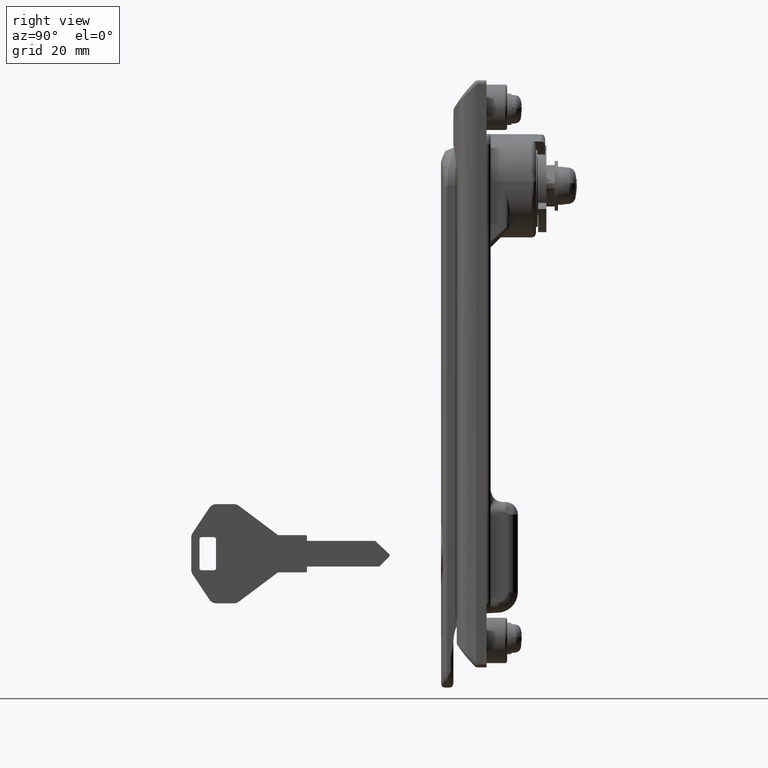
[diagram: clean part render]
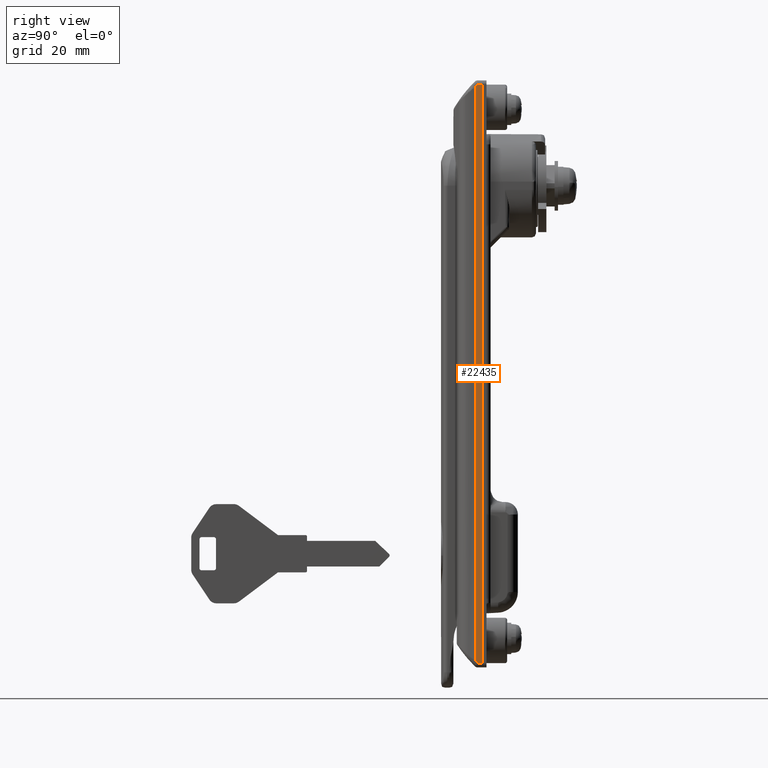
[diagram: same view with one face highlighted and labeled with its STEP entity id]
A machine part, right view. The second image highlights one B-rep face of the part: STEP entity #22435.
In plain terms, the highlighted face is a freeform B-spline surface patch.
Its self-contained STEP definition (entity closure, byte-faithful):
#19493=CARTESIAN_POINT('',(-18.997706373852200,-15.999999999963650,24.094471885114700));
#19494=VERTEX_POINT('',#19493);
#19659=CARTESIAN_POINT('',(-18.593803071811749,-15.999999999963650,24.499999999998899));
#19660=VERTEX_POINT('',#19659);
#19690=CARTESIAN_POINT('',(-18.593803071811760,-15.999999999963650,24.499999999998931));
#19691=CARTESIAN_POINT('',(-18.797626627486107,-15.999999999963647,24.299100347127485));
#19692=CARTESIAN_POINT('',(-18.997706373852189,-15.999999999963650,24.094471885114700));
#19700=(BOUNDED_CURVE()B_SPLINE_CURVE(2,(#19690,#19691,#19692),.UNSPECIFIED.,.F.,.U.)CURVE()GEOMETRIC_REPRESENTATION_ITEM()QUASI_UNIFORM_CURVE()RATIONAL_B_SPLINE_CURVE((1.0,0.999957388409327,1.0))REPRESENTATION_ITEM(''));
#19701=EDGE_CURVE('',#19660,#19494,#19700,.T.);
#20479=CARTESIAN_POINT('',(-18.997706373852200,-15.999999999963650,-115.094471885196000));
#20480=VERTEX_POINT('',#20479);
#20579=CARTESIAN_POINT('',(-18.593803071811749,-15.999999999963650,-115.500000000080210));
#20580=VERTEX_POINT('',#20579);
#20594=CARTESIAN_POINT('',(-18.997706373852239,-15.999999999963650,-115.094471885196000));
#20595=CARTESIAN_POINT('',(-18.797626627486213,-15.999999999963645,-115.299100347208750));
#20596=CARTESIAN_POINT('',(-18.593803071811820,-15.999999999963650,-115.500000000080310));
#20604=(BOUNDED_CURVE()B_SPLINE_CURVE(2,(#20594,#20595,#20596),.UNSPECIFIED.,.F.,.U.)CURVE()GEOMETRIC_REPRESENTATION_ITEM()QUASI_UNIFORM_CURVE()RATIONAL_B_SPLINE_CURVE((1.0,0.999957388409327,1.0))REPRESENTATION_ITEM(''));
#20605=EDGE_CURVE('',#20480,#20580,#20604,.T.);
#20845=CARTESIAN_POINT('',(-17.500000000000000,-15.999999999963650,-115.500000000080210));
#20846=VERTEX_POINT('',#20845);
#20847=CARTESIAN_POINT('',(-18.593803071811749,-15.999999999963650,-115.500000000080210));
#20848=CARTESIAN_POINT('',(-17.500000000000000,-15.999999999963650,-115.500000000080210));
#20849=QUASI_UNIFORM_CURVE('',1,(#20847,#20848),.UNSPECIFIED.,.F.,.U.);
#20850=EDGE_CURVE('',#20580,#20846,#20849,.T.);
#20898=CARTESIAN_POINT('',(-17.500000000000000,-15.999999999963650,24.499999999998899));
#20899=VERTEX_POINT('',#20898);
#20900=CARTESIAN_POINT('',(-17.500000000000000,-15.999999999963650,24.499999999998899));
#20901=CARTESIAN_POINT('',(-18.593803071811749,-15.999999999963650,24.499999999998899));
#20902=QUASI_UNIFORM_CURVE('',1,(#20900,#20901),.UNSPECIFIED.,.F.,.U.);
#20903=EDGE_CURVE('',#20899,#19660,#20902,.T.);
#20988=CARTESIAN_POINT('',(-18.997706373852200,-15.999999999963650,24.094471885114700));
#20989=CARTESIAN_POINT('',(-18.997706373852200,-15.999999999963650,-115.094471885196000));
#20990=QUASI_UNIFORM_CURVE('',1,(#20988,#20989),.UNSPECIFIED.,.F.,.U.);
#20991=EDGE_CURVE('',#19494,#20480,#20990,.T.);
#22363=CARTESIAN_POINT('',(-17.500000000000000,-15.999999999963650,24.499999999998899));
#22364=CARTESIAN_POINT('',(-17.500000000000000,-15.999999999963650,-115.500000000080210));
#22365=QUASI_UNIFORM_CURVE('',1,(#22363,#22364),.UNSPECIFIED.,.F.,.U.);
#22366=EDGE_CURVE('',#20899,#20846,#22365,.T.);
#22422=CARTESIAN_POINT('',(-19.072515848284361,-15.999999999963650,-122.492999728737000));
#22423=CARTESIAN_POINT('',(-17.425189574839610,-15.999999999963650,-122.492999728737000));
#22424=CARTESIAN_POINT('',(-19.072515848284361,-15.999999999963650,31.493003483748321));
#22425=CARTESIAN_POINT('',(-17.425189574839610,-15.999999999963650,31.493003483748321));
#22426=B_SPLINE_SURFACE_WITH_KNOTS('',1,1,((#22422,#22424),(#22423,#22425)),.UNSPECIFIED.,.F.,.F.,.U.,(2,2),(2,2),(0.041708866894618,0.958291662096605),(0.0,153.986003212485290),.UNSPECIFIED.);
#22427=ORIENTED_EDGE('',*,*,#20991,.T.);
#22428=ORIENTED_EDGE('',*,*,#20605,.T.);
#22429=ORIENTED_EDGE('',*,*,#20850,.T.);
#22430=ORIENTED_EDGE('',*,*,#22366,.F.);
#22431=ORIENTED_EDGE('',*,*,#20903,.T.);
#22432=ORIENTED_EDGE('',*,*,#19701,.T.);
#22433=EDGE_LOOP('',(#22427,#22428,#22429,#22430,#22431,#22432));
#22434=FACE_OUTER_BOUND('',#22433,.T.);
#22435=ADVANCED_FACE('',(#22434),#22426,.T.);